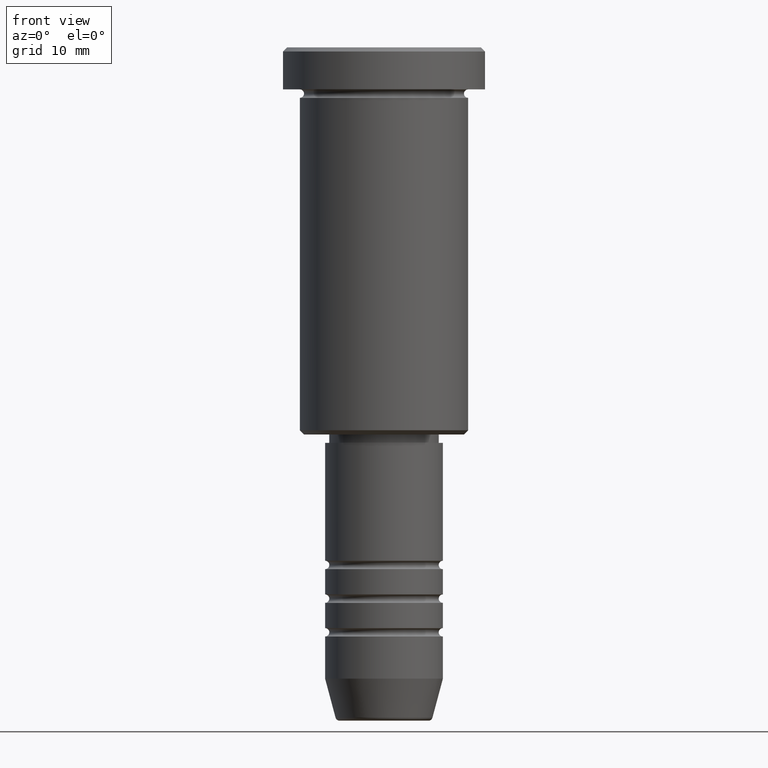
[diagram: clean part render]
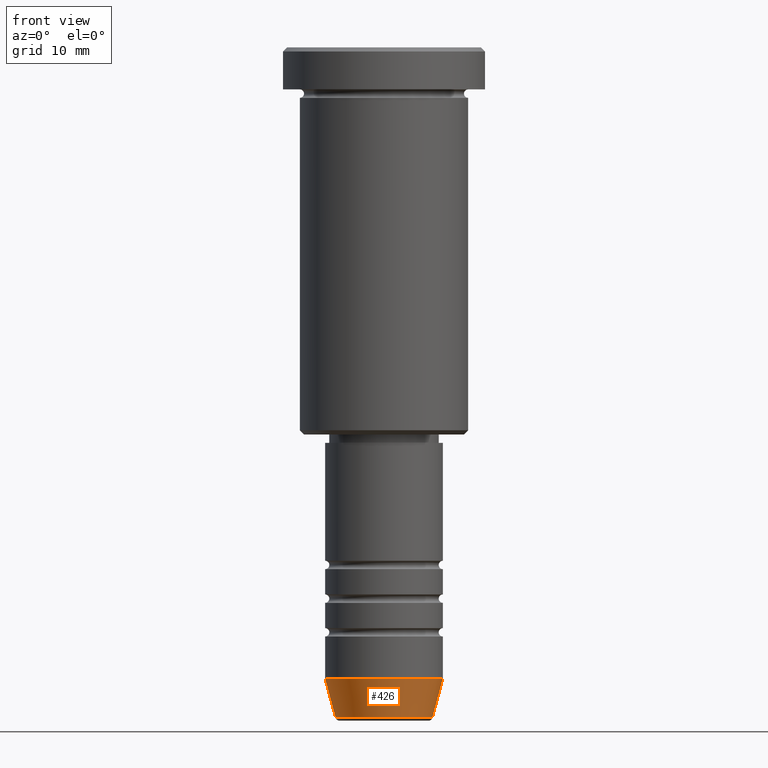
[diagram: same view with one face highlighted and labeled with its STEP entity id]
A machine part, front view. The second image highlights one B-rep face of the part: STEP entity #426.
In plain terms, the highlighted conical surface has half-angle 15 deg.
Its self-contained STEP definition (entity closure, byte-faithful):
#25 = CARTESIAN_POINT ( 'NONE',  ( 0.000000000000000000, 0.000000000000000000, -75.00000000000001421 ) ) ;
#34 = EDGE_CURVE ( 'NONE', #665, #895, #119, .T. ) ;
#93 = DIRECTION ( 'NONE',  ( 1.000000000000000000, 0.000000000000000000, 0.000000000000000000 ) ) ;
#97 = CARTESIAN_POINT ( 'NONE',  ( 7.000000000000000888, 0.000000000000000000, -75.00000000000001421 ) ) ;
#119 = CIRCLE ( 'NONE', #935, 7.000000000000000888 ) ;
#205 = CARTESIAN_POINT ( 'NONE',  ( 7.000000000000000888, 0.000000000000000000, -75.00000000000001421 ) ) ;
#209 = DIRECTION ( 'NONE',  ( -0.000000000000000000, -0.000000000000000000, 1.000000000000000000 ) ) ;
#222 = AXIS2_PLACEMENT_3D ( 'NONE', #642, #723, #93 ) ;
#253 = ORIENTED_EDGE ( 'NONE', *, *, #362, .F. ) ;
#267 = DIRECTION ( 'NONE',  ( 0.2588190451025213501, 0.000000000000000000, 0.9659258262890680902 ) ) ;
#326 = CARTESIAN_POINT ( 'NONE',  ( -5.759553456999441323, 7.812973149831956703E-16, -79.62940952255125637 ) ) ;
#352 = ORIENTED_EDGE ( 'NONE', *, *, #34, .F. ) ;
#362 = EDGE_CURVE ( 'NONE', #1122, #665, #373, .T. ) ;
#373 = LINE ( 'NONE', #637, #670 ) ;
#390 = EDGE_LOOP ( 'NONE', ( #253, #452, #1066, #352 ) ) ;
#426 = ADVANCED_FACE ( 'NONE', ( #471 ), #957, .T. ) ;
#439 = DIRECTION ( 'NONE',  ( -0.2588190451025213501, 3.169619151431772337E-17, 0.9659258262890680902 ) ) ;
#452 = ORIENTED_EDGE ( 'NONE', *, *, #724, .T. ) ;
#471 = FACE_OUTER_BOUND ( 'NONE', #390, .T. ) ;
#475 = DIRECTION ( 'NONE',  ( -0.000000000000000000, -0.000000000000000000, 1.000000000000000000 ) ) ;
#637 = CARTESIAN_POINT ( 'NONE',  ( -7.000000000000000888, 8.572527594031474176E-16, -75.00000000000001421 ) ) ;
#642 = CARTESIAN_POINT ( 'NONE',  ( 0.000000000000000000, 0.000000000000000000, -79.62940952255125637 ) ) ;
#648 = DIRECTION ( 'NONE',  ( 1.000000000000000000, 0.000000000000000000, 0.000000000000000000 ) ) ;
#665 = VERTEX_POINT ( 'NONE', #877 ) ;
#670 = VECTOR ( 'NONE', #439, 1000.000000000000000 ) ;
#723 = DIRECTION ( 'NONE',  ( -0.000000000000000000, -0.000000000000000000, 1.000000000000000000 ) ) ;
#724 = EDGE_CURVE ( 'NONE', #1122, #892, #1173, .T. ) ;
#779 = EDGE_CURVE ( 'NONE', #892, #895, #913, .T. ) ;
#877 = CARTESIAN_POINT ( 'NONE',  ( -7.000000000000000888, 8.572527594031474176E-16, -75.00000000000001421 ) ) ;
#882 = AXIS2_PLACEMENT_3D ( 'NONE', #1019, #475, #648 ) ;
#892 = VERTEX_POINT ( 'NONE', #930 ) ;
#895 = VERTEX_POINT ( 'NONE', #205 ) ;
#913 = LINE ( 'NONE', #97, #1133 ) ;
#930 = CARTESIAN_POINT ( 'NONE',  ( 5.759553456999441323, 0.000000000000000000, -79.62940952255125637 ) ) ;
#935 = AXIS2_PLACEMENT_3D ( 'NONE', #25, #209, #1003 ) ;
#957 = CONICAL_SURFACE ( 'NONE', #882, 7.000000000000000888, 0.2617993877991500740 ) ;
#1003 = DIRECTION ( 'NONE',  ( 1.000000000000000000, 0.000000000000000000, 0.000000000000000000 ) ) ;
#1019 = CARTESIAN_POINT ( 'NONE',  ( 0.000000000000000000, 0.000000000000000000, -75.00000000000001421 ) ) ;
#1066 = ORIENTED_EDGE ( 'NONE', *, *, #779, .T. ) ;
#1122 = VERTEX_POINT ( 'NONE', #326 ) ;
#1133 = VECTOR ( 'NONE', #267, 1000.000000000000000 ) ;
#1173 = CIRCLE ( 'NONE', #222, 5.759553456999441323 ) ;